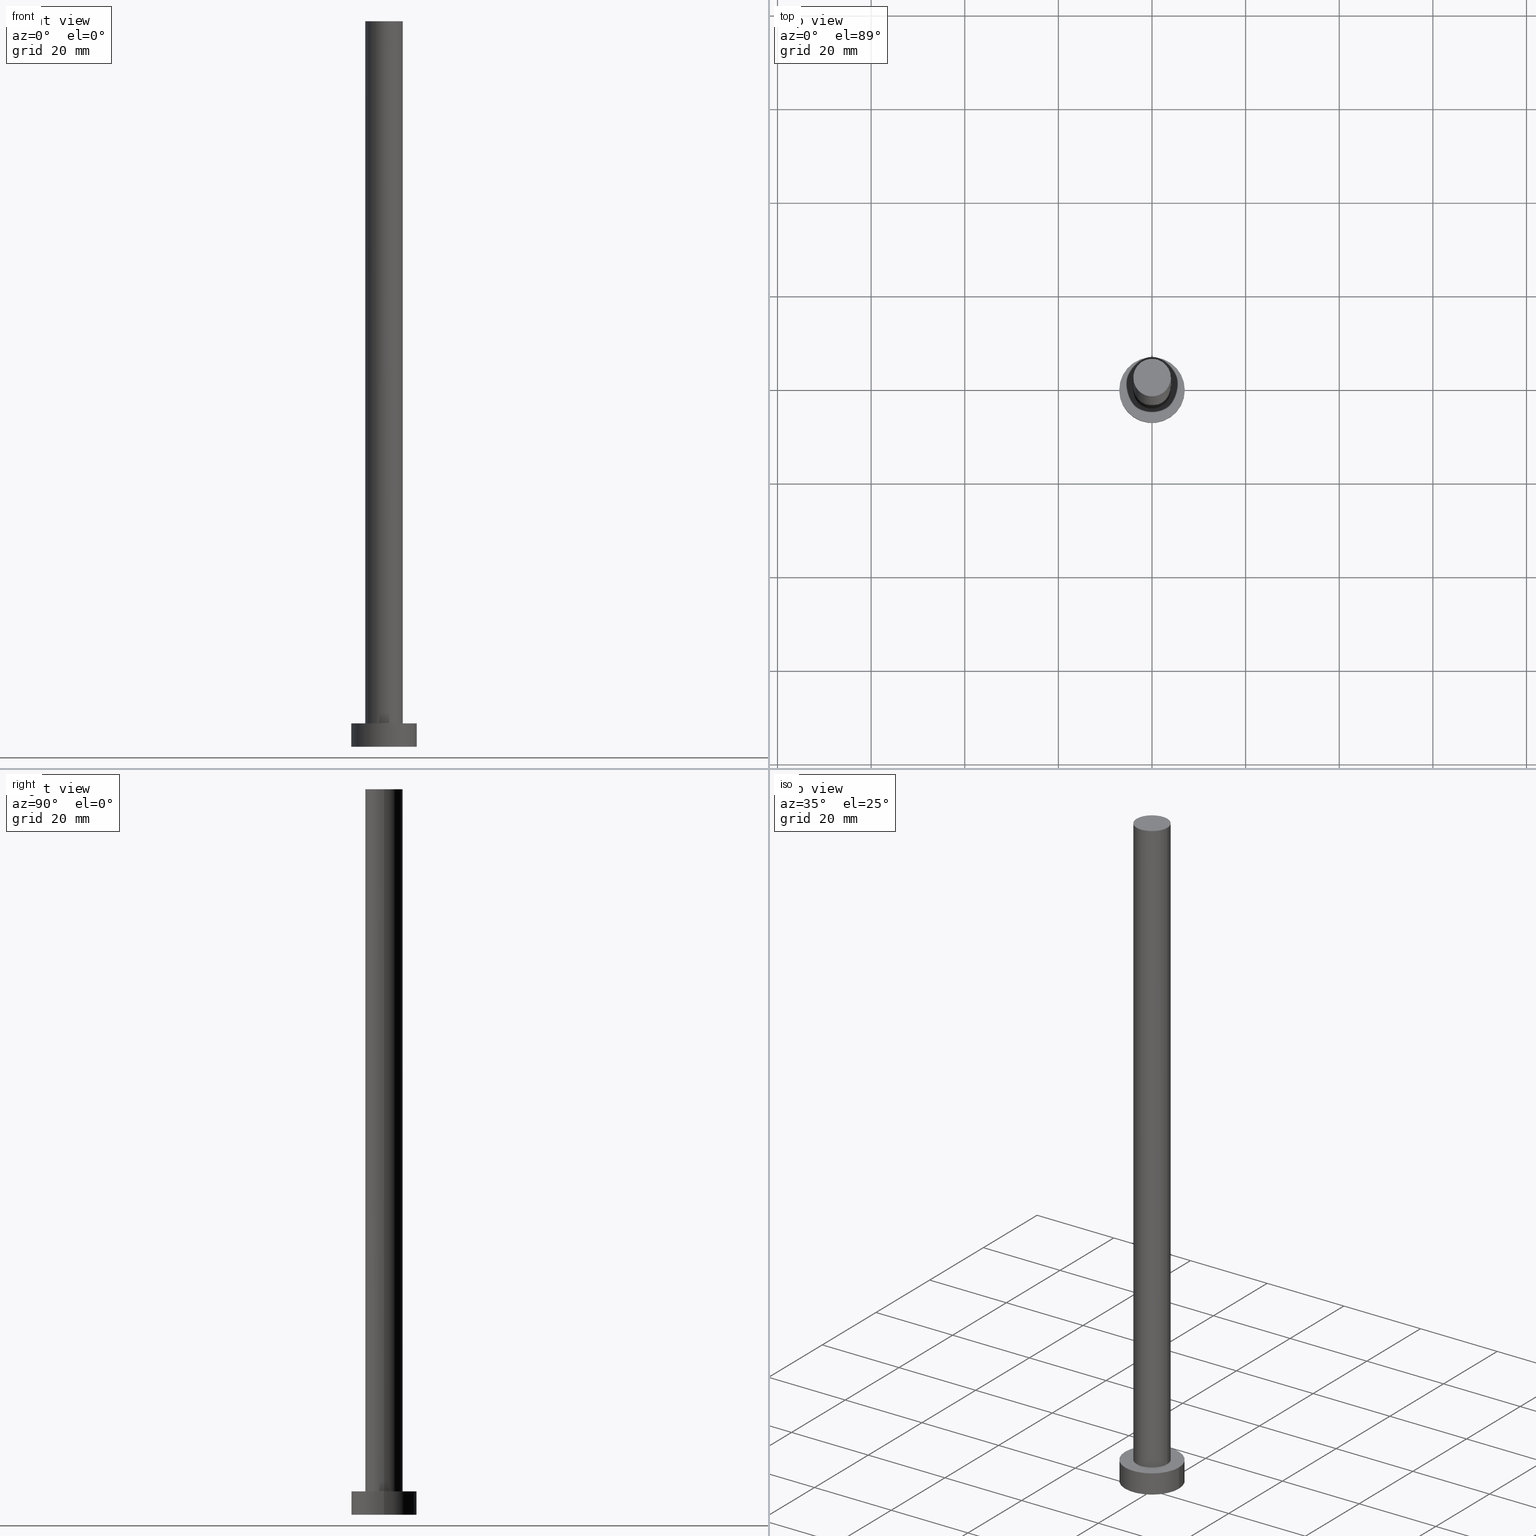
[diagram: canonical four-view strip — front | top / right | iso, engineering-drawing reading convention]
A machine part, canonical four-view strip (front | top / right | iso — engineering-drawing reading convention). The complete STEP part file that produces these views, byte-faithful:
ISO-10303-21;
HEADER;
FILE_DESCRIPTION (( 'STEP AP203' ),
    '1' );
FILE_NAME ('b312.STEP',
    '2023-04-26T06:36:31',
    ( '' ),
    ( '' ),
    'SwSTEP 2.0',
    'SolidWorks 2019',
    '' );
FILE_SCHEMA (( 'CONFIG_CONTROL_DESIGN' ));
ENDSEC;

DATA;
#1 = ORIENTED_EDGE ( 'NONE', *, *, #53, .F. ) ;
#2 = MANIFOLD_SOLID_BREP ( 'P�idat vysunut�m3', #104 ) ;
#3 = LINE ( 'NONE', #74, #111 ) ;
#4 = ORIENTED_EDGE ( 'NONE', *, *, #65, .T. ) ;
#5 = DIRECTION ( 'NONE',  ( 0.000000000000000000, 0.000000000000000000, 1.000000000000000000 ) ) ;
#6 = LINE ( 'NONE', #7, #150 ) ;
#7 = CARTESIAN_POINT ( 'NONE',  ( 4.000000000000000000, 4.898587196589412829E-16, 155.0000000000000000 ) ) ;
#8 = DIRECTION ( 'NONE',  ( 1.000000000000000000, 0.000000000000000000, -0.000000000000000000 ) ) ;
#9 = CC_DESIGN_APPROVAL ( #86, ( #243 ) ) ;
#10 = DIRECTION ( 'NONE',  ( -0.000000000000000000, -0.000000000000000000, -1.000000000000000000 ) ) ;
#11 = CC_DESIGN_PERSON_AND_ORGANIZATION_ASSIGNMENT ( #87, #216, ( #64 ) ) ;
#12 =( NAMED_UNIT ( * ) SI_UNIT ( $, .STERADIAN. ) SOLID_ANGLE_UNIT ( ) );
#13 = CARTESIAN_POINT ( 'NONE',  ( 0.000000000000000000, 0.000000000000000000, 0.000000000000000000 ) ) ;
#14 =( LENGTH_UNIT ( ) NAMED_UNIT ( * ) SI_UNIT ( .MILLI., .METRE. ) );
#15 = SHAPE_DEFINITION_REPRESENTATION ( #191, #30 ) ;
#16 = CARTESIAN_POINT ( 'NONE',  ( 7.000000000000000000, 8.572527594031473190E-16, 0.000000000000000000 ) ) ;
#17 = VERTEX_POINT ( 'NONE', #16 ) ;
#18 = CIRCLE ( 'NONE', #108, 4.000000000000000000 ) ;
#19 = CIRCLE ( 'NONE', #95, 4.000000000000000000 ) ;
#20 = ORIENTED_EDGE ( 'NONE', *, *, #115, .T. ) ;
#21 = EDGE_CURVE ( 'NONE', #134, #17, #3, .T. ) ;
#22 = CARTESIAN_POINT ( 'NONE',  ( 0.000000000000000000, 0.000000000000000000, 0.000000000000000000 ) ) ;
#23 = LOCAL_TIME ( 8, 36, 31.00000000000000000, #254 ) ;
#24 = DIRECTION ( 'NONE',  ( -0.000000000000000000, -0.000000000000000000, -1.000000000000000000 ) ) ;
#25 = FACE_OUTER_BOUND ( 'NONE', #57, .T. ) ;
#26 = CARTESIAN_POINT ( 'NONE',  ( 4.000000000000000000, 4.898587196589412829E-16, 155.0000000000000000 ) ) ;
#27 = ORGANIZATION ( 'NEUR�EN�', 'NEUR�EN�', '' ) ;
#28 = DIRECTION ( 'NONE',  ( -1.000000000000000000, 0.000000000000000000, 0.000000000000000000 ) ) ;
#29 = PERSON_AND_ORGANIZATION ( #172, #27 ) ;
#30 = ADVANCED_BREP_SHAPE_REPRESENTATION ( 'b312', ( #2, #240 ), #201 ) ;
#31 = ADVANCED_FACE ( 'NONE', ( #156 ), #224, .T. ) ;
#32 = PERSON_AND_ORGANIZATION_ROLE ( 'creator' ) ;
#33 = PERSON_AND_ORGANIZATION ( #172, #27 ) ;
#34 = DIRECTION ( 'NONE',  ( 1.000000000000000000, 0.000000000000000000, -0.000000000000000000 ) ) ;
#35 = EDGE_LOOP ( 'NONE', ( #94, #153 ) ) ;
#36 = AXIS2_PLACEMENT_3D ( 'NONE', #22, #140, #225 ) ;
#37 = ORIENTED_EDGE ( 'NONE', *, *, #117, .T. ) ;
#38 = DIRECTION ( 'NONE',  ( -0.000000000000000000, -0.000000000000000000, -1.000000000000000000 ) ) ;
#39 = CIRCLE ( 'NONE', #189, 4.000000000000000000 ) ;
#40 = APPROVAL ( #91, 'NEUR�EN�' ) ;
#41 = PLANE ( 'NONE',  #200 ) ;
#42 = CARTESIAN_POINT ( 'NONE',  ( 0.000000000000000000, 0.000000000000000000, 5.000000000000000000 ) ) ;
#43 = FACE_OUTER_BOUND ( 'NONE', #158, .T. ) ;
#44 = CARTESIAN_POINT ( 'NONE',  ( 0.000000000000000000, 0.000000000000000000, 5.000000000000000000 ) ) ;
#45 = CARTESIAN_POINT ( 'NONE',  ( -7.000000000000000000, 0.000000000000000000, 5.000000000000000000 ) ) ;
#46 = CALENDAR_DATE ( 2023, 26, 4 ) ;
#47 = COORDINATED_UNIVERSAL_TIME_OFFSET ( 1, 0, .AHEAD. ) ;
#48 = DIRECTION ( 'NONE',  ( -0.000000000000000000, -0.000000000000000000, -1.000000000000000000 ) ) ;
#49 = APPROVAL_STATUS ( 'not_yet_approved' ) ;
#50 = EDGE_CURVE ( 'NONE', #114, #134, #126, .T. ) ;
#51 = APPROVAL_ROLE ( '' ) ;
#52 = EDGE_LOOP ( 'NONE', ( #219, #204, #195, #175 ) ) ;
#53 = EDGE_CURVE ( 'NONE', #136, #174, #18, .T. ) ;
#54 = ORIENTED_EDGE ( 'NONE', *, *, #115, .F. ) ;
#55 = EDGE_CURVE ( 'NONE', #114, #71, #63, .T. ) ;
#56 = APPROVAL_DATE_TIME ( #157, #40 ) ;
#57 = EDGE_LOOP ( 'NONE', ( #154, #20, #37, #112 ) ) ;
#58 = LOCAL_TIME ( 8, 36, 31.00000000000000000, #215 ) ;
#59 = PLANE ( 'NONE',  #218 ) ;
#60 = CARTESIAN_POINT ( 'NONE',  ( 0.000000000000000000, 0.000000000000000000, 5.000000000000000000 ) ) ;
#61 = CARTESIAN_POINT ( 'NONE',  ( 0.000000000000000000, 0.000000000000000000, 5.000000000000000000 ) ) ;
#62 = DIRECTION ( 'NONE',  ( 0.000000000000000000, 0.000000000000000000, 1.000000000000000000 ) ) ;
#63 = LINE ( 'NONE', #187, #182 ) ;
#64 = PRODUCT ( 'b312', 'b312', '', ( #250 ) ) ;
#65 = EDGE_CURVE ( 'NONE', #136, #179, #116, .T. ) ;
#66 = CIRCLE ( 'NONE', #123, 7.000000000000000000 ) ;
#67 = APPROVAL_DATE_TIME ( #249, #110 ) ;
#68 = CALENDAR_DATE ( 2023, 26, 4 ) ;
#69 = SECURITY_CLASSIFICATION_LEVEL ( 'unclassified' ) ;
#70 = CYLINDRICAL_SURFACE ( 'NONE', #245, 7.000000000000000000 ) ;
#71 = VERTEX_POINT ( 'NONE', #161 ) ;
#72 = CC_DESIGN_PERSON_AND_ORGANIZATION_ASSIGNMENT ( #152, #228, ( #243 ) ) ;
#73 = EDGE_LOOP ( 'NONE', ( #54, #1, #4, #130 ) ) ;
#74 = CARTESIAN_POINT ( 'NONE',  ( 7.000000000000000000, 8.572527594031473190E-16, 5.000000000000000000 ) ) ;
#75 = AXIS2_PLACEMENT_3D ( 'NONE', #247, #121, #244 ) ;
#76 = AXIS2_PLACEMENT_3D ( 'NONE', #119, #211, #103 ) ;
#77 = ORIENTED_EDGE ( 'NONE', *, *, #21, .F. ) ;
#78 = FACE_OUTER_BOUND ( 'NONE', #198, .T. ) ;
#79 = APPROVAL_PERSON_ORGANIZATION ( #29, #110, #106 ) ;
#80 = DIRECTION ( 'NONE',  ( -0.000000000000000000, -0.000000000000000000, -1.000000000000000000 ) ) ;
#81 = DIRECTION ( 'NONE',  ( 1.000000000000000000, 0.000000000000000000, 0.000000000000000000 ) ) ;
#82 = ADVANCED_FACE ( 'NONE', ( #242 ), #41, .F. ) ;
#83 = PLANE ( 'NONE',  #233 ) ;
#84 = APPROVAL_PERSON_ORGANIZATION ( #232, #86, #145 ) ;
#85 = CARTESIAN_POINT ( 'NONE',  ( 4.000000000000000000, 4.898587196589412829E-16, 5.000000000000000000 ) ) ;
#86 = APPROVAL ( #248, 'NEUR�EN�' ) ;
#87 = PERSON_AND_ORGANIZATION ( #172, #27 ) ;
#88 = CIRCLE ( 'NONE', #90, 4.000000000000000000 ) ;
#89 = CIRCLE ( 'NONE', #36, 7.000000000000000000 ) ;
#90 = AXIS2_PLACEMENT_3D ( 'NONE', #60, #5, #223 ) ;
#91 = APPROVAL_STATUS ( 'not_yet_approved' ) ;
#92 = UNCERTAINTY_MEASURE_WITH_UNIT (LENGTH_MEASURE( 1.000000000000000082E-05 ), #14, 'distance_accuracy_value', 'NONE');
#93 = ORIENTED_EDGE ( 'NONE', *, *, #135, .T. ) ;
#94 = ORIENTED_EDGE ( 'NONE', *, *, #50, .T. ) ;
#95 = AXIS2_PLACEMENT_3D ( 'NONE', #127, #252, #105 ) ;
#96 = CALENDAR_DATE ( 2023, 26, 4 ) ;
#97 = ORIENTED_EDGE ( 'NONE', *, *, #55, .T. ) ;
#98 = ADVANCED_FACE ( 'NONE', ( #164, #138 ), #83, .T. ) ;
#99 = CARTESIAN_POINT ( 'NONE',  ( -4.000000000000000000, 0.000000000000000000, 5.000000000000000000 ) ) ;
#100 = DIRECTION ( 'NONE',  ( 0.000000000000000000, 0.000000000000000000, 1.000000000000000000 ) ) ;
#101 = CARTESIAN_POINT ( 'NONE',  ( 0.000000000000000000, 0.000000000000000000, 155.0000000000000000 ) ) ;
#102 = DIRECTION ( 'NONE',  ( -0.000000000000000000, -0.000000000000000000, -1.000000000000000000 ) ) ;
#103 = DIRECTION ( 'NONE',  ( -1.000000000000000000, 0.000000000000000000, 0.000000000000000000 ) ) ;
#104 = CLOSED_SHELL ( 'NONE', ( #160, #253, #139, #98, #82, #31, #226 ) ) ;
#105 = DIRECTION ( 'NONE',  ( 1.000000000000000000, 0.000000000000000000, 0.000000000000000000 ) ) ;
#106 = APPROVAL_ROLE ( '' ) ;
#107 = DATE_AND_TIME ( #68, #234 ) ;
#108 = AXIS2_PLACEMENT_3D ( 'NONE', #101, #163, #186 ) ;
#109 = PERSON_AND_ORGANIZATION_ROLE ( 'design_supplier' ) ;
#110 = APPROVAL ( #49, 'NEUR�EN�' ) ;
#111 = VECTOR ( 'NONE', #38, 1000.000000000000000 ) ;
#112 = ORIENTED_EDGE ( 'NONE', *, *, #65, .F. ) ;
#113 = CALENDAR_DATE ( 2023, 26, 4 ) ;
#114 = VERTEX_POINT ( 'NONE', #45 ) ;
#115 = EDGE_CURVE ( 'NONE', #174, #159, #6, .T. ) ;
#116 = LINE ( 'NONE', #188, #192 ) ;
#117 = EDGE_CURVE ( 'NONE', #159, #179, #39, .T. ) ;
#118 = DIRECTION ( 'NONE',  ( 1.000000000000000000, 0.000000000000000000, 0.000000000000000000 ) ) ;
#119 = CARTESIAN_POINT ( 'NONE',  ( 0.000000000000000000, 0.000000000000000000, 155.0000000000000000 ) ) ;
#120 = CYLINDRICAL_SURFACE ( 'NONE', #236, 4.000000000000000000 ) ;
#121 = DIRECTION ( 'NONE',  ( 0.000000000000000000, 0.000000000000000000, 1.000000000000000000 ) ) ;
#122 = CC_DESIGN_PERSON_AND_ORGANIZATION_ASSIGNMENT ( #33, #32, ( #194 ) ) ;
#123 = AXIS2_PLACEMENT_3D ( 'NONE', #61, #241, #118 ) ;
#124 = DATE_TIME_ROLE ( 'creation_date' ) ;
#125 = APPROVAL_DATE_TIME ( #107, #86 ) ;
#126 = CIRCLE ( 'NONE', #146, 7.000000000000000000 ) ;
#127 = CARTESIAN_POINT ( 'NONE',  ( 0.000000000000000000, 0.000000000000000000, 155.0000000000000000 ) ) ;
#128 = CC_DESIGN_PERSON_AND_ORGANIZATION_ASSIGNMENT ( #147, #109, ( #194 ) ) ;
#129 = DATE_AND_TIME ( #113, #23 ) ;
#130 = ORIENTED_EDGE ( 'NONE', *, *, #207, .T. ) ;
#131 = AXIS2_PLACEMENT_3D ( 'NONE', #44, #102, #222 ) ;
#132 = LOCAL_TIME ( 8, 36, 31.00000000000000000, #133 ) ;
#133 = COORDINATED_UNIVERSAL_TIME_OFFSET ( 1, 0, .AHEAD. ) ;
#134 = VERTEX_POINT ( 'NONE', #205 ) ;
#135 = EDGE_CURVE ( 'NONE', #71, #17, #89, .T. ) ;
#136 = VERTEX_POINT ( 'NONE', #183 ) ;
#137 = CIRCLE ( 'NONE', #75, 7.000000000000000000 ) ;
#138 = FACE_OUTER_BOUND ( 'NONE', #35, .T. ) ;
#139 = ADVANCED_FACE ( 'NONE', ( #43 ), #208, .T. ) ;
#140 = DIRECTION ( 'NONE',  ( 0.000000000000000000, 0.000000000000000000, 1.000000000000000000 ) ) ;
#141 = DESIGN_CONTEXT ( 'detailed design', #209, 'design' ) ;
#142 = DIRECTION ( 'NONE',  ( 1.000000000000000000, 0.000000000000000000, 0.000000000000000000 ) ) ;
#143 = DIRECTION ( 'NONE',  ( -0.000000000000000000, -0.000000000000000000, -1.000000000000000000 ) ) ;
#144 = CARTESIAN_POINT ( 'NONE',  ( 0.000000000000000000, 0.000000000000000000, 5.000000000000000000 ) ) ;
#145 = APPROVAL_ROLE ( '' ) ;
#146 = AXIS2_PLACEMENT_3D ( 'NONE', #42, #206, #81 ) ;
#147 = PERSON_AND_ORGANIZATION ( #172, #27 ) ;
#148 = CARTESIAN_POINT ( 'NONE',  ( 0.000000000000000000, 0.000000000000000000, 5.000000000000000000 ) ) ;
#149 = PERSON_AND_ORGANIZATION ( #172, #27 ) ;
#150 = VECTOR ( 'NONE', #80, 1000.000000000000000 ) ;
#151 = CC_DESIGN_APPROVAL ( #40, ( #229 ) ) ;
#152 = PERSON_AND_ORGANIZATION ( #172, #27 ) ;
#153 = ORIENTED_EDGE ( 'NONE', *, *, #212, .T. ) ;
#154 = ORIENTED_EDGE ( 'NONE', *, *, #231, .F. ) ;
#155 = APPROVAL_PERSON_ORGANIZATION ( #176, #40, #51 ) ;
#156 = FACE_OUTER_BOUND ( 'NONE', #73, .T. ) ;
#157 = DATE_AND_TIME ( #96, #132 ) ;
#158 = EDGE_LOOP ( 'NONE', ( #77, #255, #97, #93 ) ) ;
#159 = VERTEX_POINT ( 'NONE', #85 ) ;
#160 = ADVANCED_FACE ( 'NONE', ( #25 ), #120, .T. ) ;
#161 = CARTESIAN_POINT ( 'NONE',  ( -7.000000000000000000, 0.000000000000000000, 0.000000000000000000 ) ) ;
#162 = DIRECTION ( 'NONE',  ( -1.000000000000000000, 0.000000000000000000, 0.000000000000000000 ) ) ;
#163 = DIRECTION ( 'NONE',  ( 0.000000000000000000, 0.000000000000000000, 1.000000000000000000 ) ) ;
#164 = FACE_BOUND ( 'NONE', #220, .T. ) ;
#165 = PRODUCT_RELATED_PRODUCT_CATEGORY ( 'detail', '', ( #64 ) ) ;
#166 = CARTESIAN_POINT ( 'NONE',  ( 0.000000000000000000, 0.000000000000000000, 0.000000000000000000 ) ) ;
#167 = FACE_OUTER_BOUND ( 'NONE', #52, .T. ) ;
#168 = CALENDAR_DATE ( 2023, 26, 4 ) ;
#169 = APPLICATION_PROTOCOL_DEFINITION ( 'international standard', 'config_control_design', 1994, #209 ) ;
#170 = DIRECTION ( 'NONE',  ( 1.000000000000000000, 0.000000000000000000, 0.000000000000000000 ) ) ;
#171 = DIRECTION ( 'NONE',  ( 0.000000000000000000, 0.000000000000000000, 1.000000000000000000 ) ) ;
#172 = PERSON ( 'NEUR�EN�', 'NEUR�EN�', 'NEUR�EN�', ('NEUR�EN�'), ('NEUR�EN�'), ('NEUR�EN�') ) ;
#173 = LOCAL_TIME ( 8, 36, 31.00000000000000000, #47 ) ;
#174 = VERTEX_POINT ( 'NONE', #26 ) ;
#175 = ORIENTED_EDGE ( 'NONE', *, *, #55, .F. ) ;
#176 = PERSON_AND_ORGANIZATION ( #172, #27 ) ;
#177 = ORIENTED_EDGE ( 'NONE', *, *, #135, .F. ) ;
#178 = ORIENTED_EDGE ( 'NONE', *, *, #203, .F. ) ;
#179 = VERTEX_POINT ( 'NONE', #99 ) ;
#180 = CC_DESIGN_DATE_AND_TIME_ASSIGNMENT ( #214, #124, ( #243 ) ) ;
#181 = CARTESIAN_POINT ( 'NONE',  ( 0.000000000000000000, 0.000000000000000000, 5.000000000000000000 ) ) ;
#182 = VECTOR ( 'NONE', #143, 1000.000000000000000 ) ;
#183 = CARTESIAN_POINT ( 'NONE',  ( -4.000000000000000000, 0.000000000000000000, 155.0000000000000000 ) ) ;
#184 = CC_DESIGN_SECURITY_CLASSIFICATION ( #229, ( #194 ) ) ;
#185 = APPLICATION_CONTEXT ( 'configuration controlled 3d designs of mechanical parts and assemblies' ) ;
#186 = DIRECTION ( 'NONE',  ( 1.000000000000000000, 0.000000000000000000, 0.000000000000000000 ) ) ;
#187 = CARTESIAN_POINT ( 'NONE',  ( -7.000000000000000000, 0.000000000000000000, 5.000000000000000000 ) ) ;
#188 = CARTESIAN_POINT ( 'NONE',  ( -4.000000000000000000, 0.000000000000000000, 155.0000000000000000 ) ) ;
#189 = AXIS2_PLACEMENT_3D ( 'NONE', #181, #100, #142 ) ;
#190 = DIRECTION ( 'NONE',  ( 0.000000000000000000, 0.000000000000000000, 1.000000000000000000 ) ) ;
#191 = PRODUCT_DEFINITION_SHAPE ( 'NONE', 'NONE',  #243 ) ;
#192 = VECTOR ( 'NONE', #10, 1000.000000000000000 ) ;
#193 = APPLICATION_PROTOCOL_DEFINITION ( 'international standard', 'config_control_design', 1994, #185 ) ;
#194 = PRODUCT_DEFINITION_FORMATION_WITH_SPECIFIED_SOURCE ( 'LIBOVOLN�', '', #64, .NOT_KNOWN. ) ;
#195 = ORIENTED_EDGE ( 'NONE', *, *, #203, .T. ) ;
#196 = CC_DESIGN_DATE_AND_TIME_ASSIGNMENT ( #129, #197, ( #229 ) ) ;
#197 = DATE_TIME_ROLE ( 'classification_date' ) ;
#198 = EDGE_LOOP ( 'NONE', ( #199, #202 ) ) ;
#199 = ORIENTED_EDGE ( 'NONE', *, *, #53, .T. ) ;
#200 = AXIS2_PLACEMENT_3D ( 'NONE', #166, #246, #8 ) ;
#201 =( GEOMETRIC_REPRESENTATION_CONTEXT ( 3 ) GLOBAL_UNCERTAINTY_ASSIGNED_CONTEXT ( ( #92 ) ) GLOBAL_UNIT_ASSIGNED_CONTEXT ( ( #14, #230, #12 ) ) REPRESENTATION_CONTEXT ( 'NONE', 'WORKASPACE' ) );
#202 = ORIENTED_EDGE ( 'NONE', *, *, #231, .T. ) ;
#203 = EDGE_CURVE ( 'NONE', #17, #71, #137, .T. ) ;
#204 = ORIENTED_EDGE ( 'NONE', *, *, #21, .T. ) ;
#205 = CARTESIAN_POINT ( 'NONE',  ( 7.000000000000000000, 8.572527594031473190E-16, 5.000000000000000000 ) ) ;
#206 = DIRECTION ( 'NONE',  ( 0.000000000000000000, 0.000000000000000000, 1.000000000000000000 ) ) ;
#207 = EDGE_CURVE ( 'NONE', #179, #159, #88, .T. ) ;
#208 = CYLINDRICAL_SURFACE ( 'NONE', #131, 7.000000000000000000 ) ;
#209 = APPLICATION_CONTEXT ( 'configuration controlled 3d designs of mechanical parts and assemblies' ) ;
#210 = CARTESIAN_POINT ( 'NONE',  ( 0.000000000000000000, 0.000000000000000000, 155.0000000000000000 ) ) ;
#211 = DIRECTION ( 'NONE',  ( -0.000000000000000000, -0.000000000000000000, -1.000000000000000000 ) ) ;
#212 = EDGE_CURVE ( 'NONE', #134, #114, #66, .T. ) ;
#213 = CC_DESIGN_APPROVAL ( #110, ( #194 ) ) ;
#214 = DATE_AND_TIME ( #46, #58 ) ;
#215 = COORDINATED_UNIVERSAL_TIME_OFFSET ( 1, 0, .AHEAD. ) ;
#216 = PERSON_AND_ORGANIZATION_ROLE ( 'design_owner' ) ;
#217 = CARTESIAN_POINT ( 'NONE',  ( 0.000000000000000000, 0.000000000000000000, 155.0000000000000000 ) ) ;
#218 = AXIS2_PLACEMENT_3D ( 'NONE', #217, #171, #34 ) ;
#219 = ORIENTED_EDGE ( 'NONE', *, *, #212, .F. ) ;
#220 = EDGE_LOOP ( 'NONE', ( #238, #235 ) ) ;
#221 = EDGE_LOOP ( 'NONE', ( #177, #178 ) ) ;
#222 = DIRECTION ( 'NONE',  ( -1.000000000000000000, 0.000000000000000000, 0.000000000000000000 ) ) ;
#223 = DIRECTION ( 'NONE',  ( 1.000000000000000000, 0.000000000000000000, 0.000000000000000000 ) ) ;
#224 = CYLINDRICAL_SURFACE ( 'NONE', #76, 4.000000000000000000 ) ;
#225 = DIRECTION ( 'NONE',  ( 1.000000000000000000, 0.000000000000000000, 0.000000000000000000 ) ) ;
#226 = ADVANCED_FACE ( 'NONE', ( #78 ), #59, .T. ) ;
#227 = DIRECTION ( 'NONE',  ( 1.000000000000000000, 0.000000000000000000, -0.000000000000000000 ) ) ;
#228 = PERSON_AND_ORGANIZATION_ROLE ( 'creator' ) ;
#229 = SECURITY_CLASSIFICATION ( '', '', #69 ) ;
#230 =( NAMED_UNIT ( * ) PLANE_ANGLE_UNIT ( ) SI_UNIT ( $, .RADIAN. ) );
#231 = EDGE_CURVE ( 'NONE', #174, #136, #19, .T. ) ;
#232 = PERSON_AND_ORGANIZATION ( #172, #27 ) ;
#233 = AXIS2_PLACEMENT_3D ( 'NONE', #144, #62, #227 ) ;
#234 = LOCAL_TIME ( 8, 36, 31.00000000000000000, #251 ) ;
#235 = ORIENTED_EDGE ( 'NONE', *, *, #117, .F. ) ;
#236 = AXIS2_PLACEMENT_3D ( 'NONE', #210, #24, #162 ) ;
#237 = PERSON_AND_ORGANIZATION_ROLE ( 'classification_officer' ) ;
#238 = ORIENTED_EDGE ( 'NONE', *, *, #207, .F. ) ;
#239 = CC_DESIGN_PERSON_AND_ORGANIZATION_ASSIGNMENT ( #149, #237, ( #229 ) ) ;
#240 = AXIS2_PLACEMENT_3D ( 'NONE', #13, #190, #170 ) ;
#241 = DIRECTION ( 'NONE',  ( 0.000000000000000000, 0.000000000000000000, 1.000000000000000000 ) ) ;
#242 = FACE_OUTER_BOUND ( 'NONE', #221, .T. ) ;
#243 = PRODUCT_DEFINITION ( 'NEZN�M�', '', #194, #141 ) ;
#244 = DIRECTION ( 'NONE',  ( 1.000000000000000000, 0.000000000000000000, 0.000000000000000000 ) ) ;
#245 = AXIS2_PLACEMENT_3D ( 'NONE', #148, #48, #28 ) ;
#246 = DIRECTION ( 'NONE',  ( 0.000000000000000000, 0.000000000000000000, 1.000000000000000000 ) ) ;
#247 = CARTESIAN_POINT ( 'NONE',  ( 0.000000000000000000, 0.000000000000000000, 0.000000000000000000 ) ) ;
#248 = APPROVAL_STATUS ( 'not_yet_approved' ) ;
#249 = DATE_AND_TIME ( #168, #173 ) ;
#250 = MECHANICAL_CONTEXT ( 'NONE', #185, 'mechanical' ) ;
#251 = COORDINATED_UNIVERSAL_TIME_OFFSET ( 1, 0, .AHEAD. ) ;
#252 = DIRECTION ( 'NONE',  ( 0.000000000000000000, 0.000000000000000000, 1.000000000000000000 ) ) ;
#253 = ADVANCED_FACE ( 'NONE', ( #167 ), #70, .T. ) ;
#254 = COORDINATED_UNIVERSAL_TIME_OFFSET ( 1, 0, .AHEAD. ) ;
#255 = ORIENTED_EDGE ( 'NONE', *, *, #50, .F. ) ;
ENDSEC;
END-ISO-10303-21;
